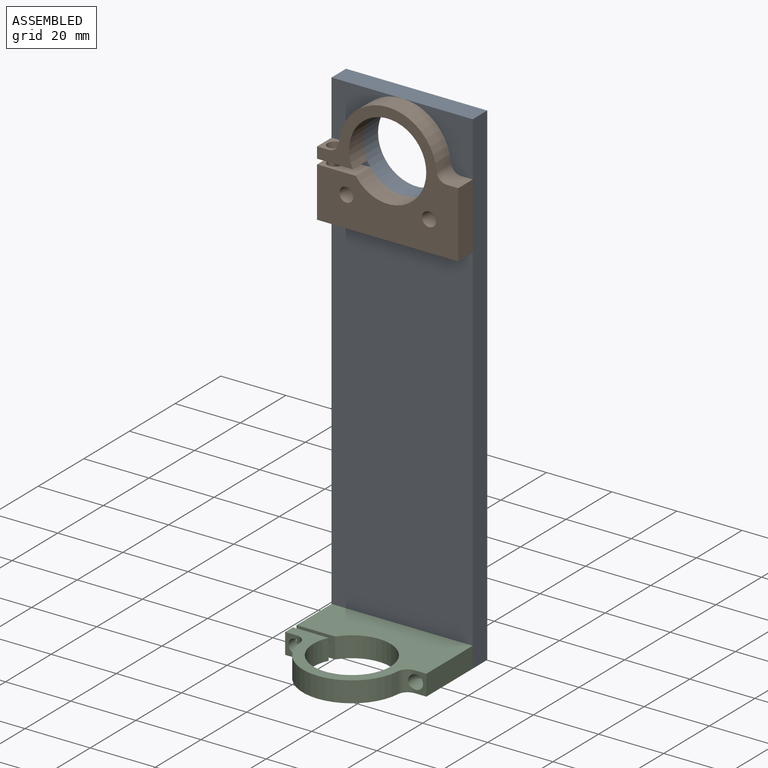
[diagram: assembled view]
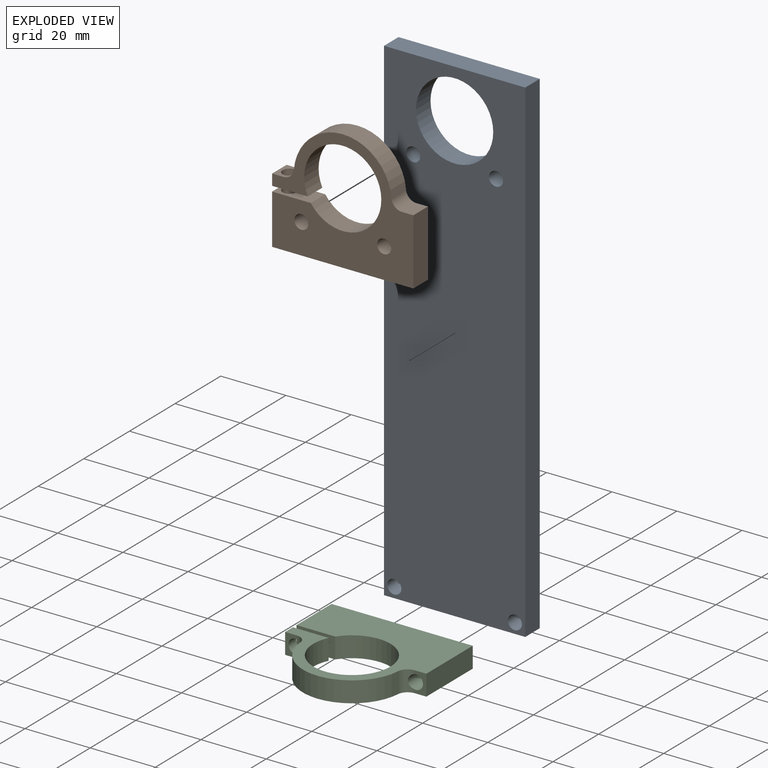
[diagram: exploded view]
GUIDED TOUR — MATED ASSEMBLY (Onshape document f667a65f83858eaefb3c8f8a, AutoMate assembly f667a65f83858eaefb3c8f8a_7182e9b4c6fdfac05016f8f3_ef4f67770267262d80a70ee8_default)

This assembly has 3 components, labeled P0..P2 below (a component is one placed occurrence of a part; the same part can appear more than once), held together by 2 mates. A mate is a constraint between two components; its type names the relative motion it leaves free:
  FASTENED — locks the two components together rigidly (no relative motion).
Axis/direction vectors are unit vectors and 'through' points are millimeter coordinates, both in the assembly's world frame.

MATES
  1. FASTENED "Fastened 2": P2 <-> P0, direction (0.000, 1.000, 0.000) through (11.60, -10.55, -73.36) mm
  2. FASTENED "Fastened 1": P1 <-> P0, direction (0.000, 1.000, 0.000) through (5.81, -10.55, 48.14) mm

ASSEMBLY ORDER
  1. P2 — the base component [order verified]
  2. P1 [order verified]
  3. P0 [order verified]
Order-tag legend:
  [order verified] — this step's position reverses a verified removal order: the component was checked to insert without passing through the ones already placed.

Of the 3 components, 3 carry the full construction recipe — the FeatureScript program that regenerates the part's solid from scratch; the rest are supplied as boundary geometry only.
Each toured component is shown spotlighted twice — in the assembled view, then in the exploded view, where a leader line traces a displaced component back to its assembled socket (saturated green if recipe-attached, orange if geometry-only; every other component desaturated gray) — followed by its recipe or geometry summary and the mates that hold it.
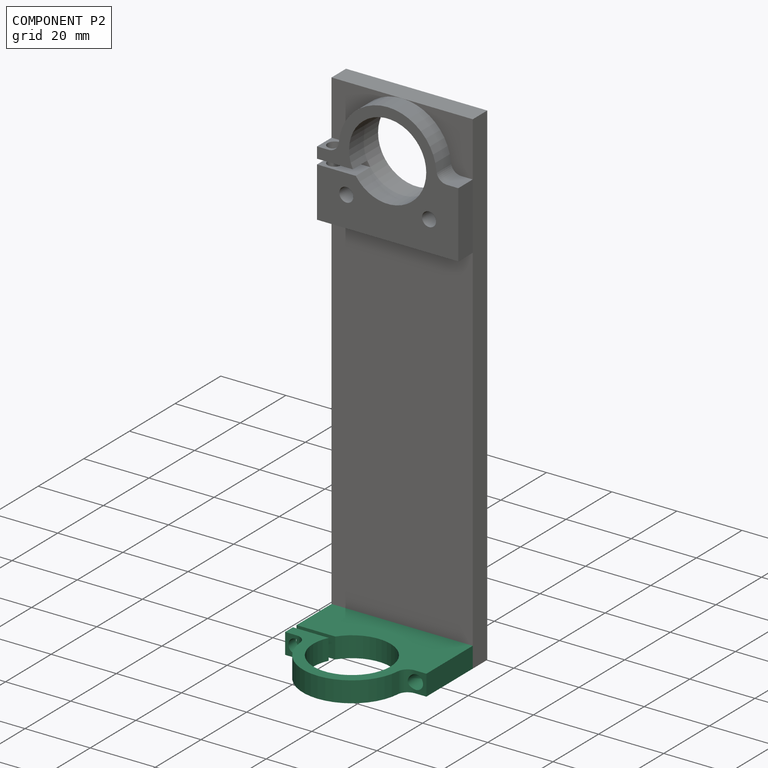
[diagram: component P2 — assembled]
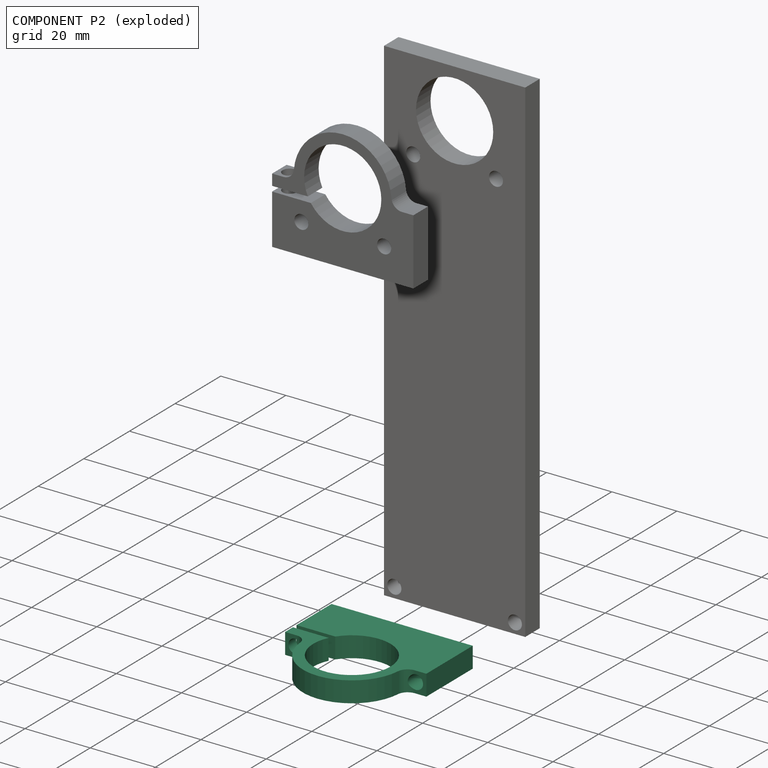
[diagram: component P2 — exploded]
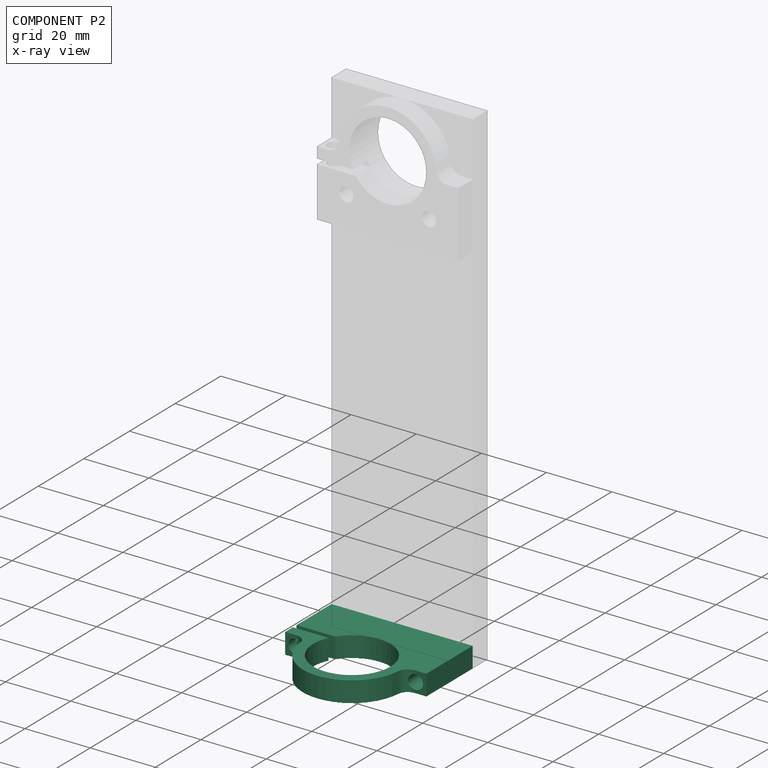
[diagram: component P2 — x-ray view]
COMPONENT P2 — recipe-attached (CADFS 00216292, mesh-verified: the recipe's output STEP matches this component's geometry to below the mesh-comparison resolution (tessellation chordal tolerance ~0.086 mm)).
Held by: FASTENED mate "Fastened 2" to P0.
Construction recipe (FeatureScript — the CAD program that rebuilds this solid; sketch coordinates are in the units given by the * unit suffixes, e.g. mm):

FeatureScript 1511;
import(path : "onshape/std/geometry.fs", version : "1511.0");
import(path : "onshape/std/common.fs", version : "1511.0");
const mm = millimeter;
const VERTEX = EntityType.VERTEX;
const EDGE = EntityType.EDGE;
const FACE = EntityType.FACE;
const BODY = EntityType.BODY;
function v(x, y){return vector(x, y);}
function OD(order){return orderDisambiguation(order);}
function OSD(set){return originalSetDisambiguation(set);}
function TD(topology){return topologyDisambiguation(topology);}
function TDD(query){return trueDependencyDisambiguation(query);}
function sQuery(a, b, c) {return sketchEntityQuery(a, b, c);}

annotation { "Feature Type Name" : "Feature", "Feature Type Description" : "" }
export const myFeature = defineFeature(function(context is Context, id is Id, definition is map)
    precondition{}
    {
        {
            var Q0;
            Q0=qCreatedBy(makeId("Front.planeOp"),FACE);
            var sketch = newSketch(context, id + "F0", { "sketchPlane" : qUnion([Q0])});
            skArc(sketch, "E0", {"start": v(-9.8, -6.67) * mm, "mid": v(10.28, 5.9) * mm, "end": v(-10.7, -5.09) * mm});
            skArc(sketch, "E1", {"start": v(14.97, 1.23) * mm, "mid": v(0, 15.02) * mm, "end": v(-14.97, 1.23) * mm});
            skLineSegment(sketch, "E2.bottom", {"start": v(-21.67, -1.68) * mm, "end": v(-18.14, -1.68) * mm});
            skLineSegment(sketch, "E2.top", {"start": v(-21.67, -22.02) * mm, "end": v(21.67, -22.02) * mm});
            skLineSegment(sketch, "E2.left", {"start": v(-21.67, -1.68) * mm, "end": v(-21.67, -5.09) * mm});
            skLineSegment(sketch, "E2.right", {"start": v(21.67, -1.68) * mm, "end": v(21.67, -22.02) * mm});
            skPoint(sketch, "E2.middle", {"position": v(0, -11.85) * mm});
            skLineSegment(sketch, "E3", {"start": v(-21.67, -5.09) * mm, "end": v(-10.7, -5.09) * mm});
            skLineSegment(sketch, "E4", {"start": v(-21.67, -6.67) * mm, "end": v(-9.8, -6.67) * mm});
            skLineSegment(sketch, "E5.trimOffspring", {"start": v(-21.67, -6.67) * mm, "end": v(-21.67, -22.02) * mm});
            skLineSegment(sketch, "E6.trimOffspring", {"start": v(18.14, -1.68) * mm, "end": v(21.67, -1.68) * mm});
            skPoint(sketch, "E7.visualSharp", {"position": v(-14.93, -1.68) * mm});
            skArc(sketch, "E7.filletArc", {"start": v(-18.14, -1.68) * mm, "mid": v(-15.99, -0.84) * mm, "end": v(-14.97, 1.23) * mm});
            skPoint(sketch, "E8.visualSharp", {"position": v(14.93, -1.68) * mm});
            skArc(sketch, "E8.filletArc", {"start": v(14.97, 1.23) * mm, "mid": v(15.99, -0.84) * mm, "end": v(18.14, -1.68) * mm});
            skSolve(sketch);
        }
        {
            var Q0;
            Q0 = qSketchRegion(id + "F0", true);
            extrude(context, id + "F1", {"entities" : qUnion([Q0]), "depth" : 6.35 * mm});
        }
        {
            var Q0;
            Q0=makeQuery(id+"F1.opExtrude","SWEPT_FACE",FACE,{"disambiguationData":[OSD([sQuery(id+"F0.wireOp",EDGE,"E2.bottom")])]});
            var sketch = newSketch(context, id + "F2", { "sketchPlane" : qUnion([Q0])});
            skLineSegment(sketch, "E9", {"start": v(-21.67, -3.18) * mm, "end": v(21.64, -3.18) * mm, "construction": true});
            skPoint(sketch, "E9.endSnap0", {"position": v(-21.67, -3.18) * mm});
            skCircle(sketch, "E10", {"center": v(-18.5, -3.18) * mm, "radius": 2.16 * mm});
            skCircle(sketch, "E11", {"center": v(18.5, -3.17) * mm, "radius": 2.16 * mm});
            skSolve(sketch);
        }
        {
            var Q0;
            Q0 = qSketchRegion(id + "F2", true);
            extrude(context, id + "F3", {"entities" : qUnion([Q0]), "operationType" : NewBodyOperationType.REMOVE, "endBound" : BoundingType.SYMMETRIC, "oppositeDirection" : true, "depth" : 76.2 * mm});
        }
    });
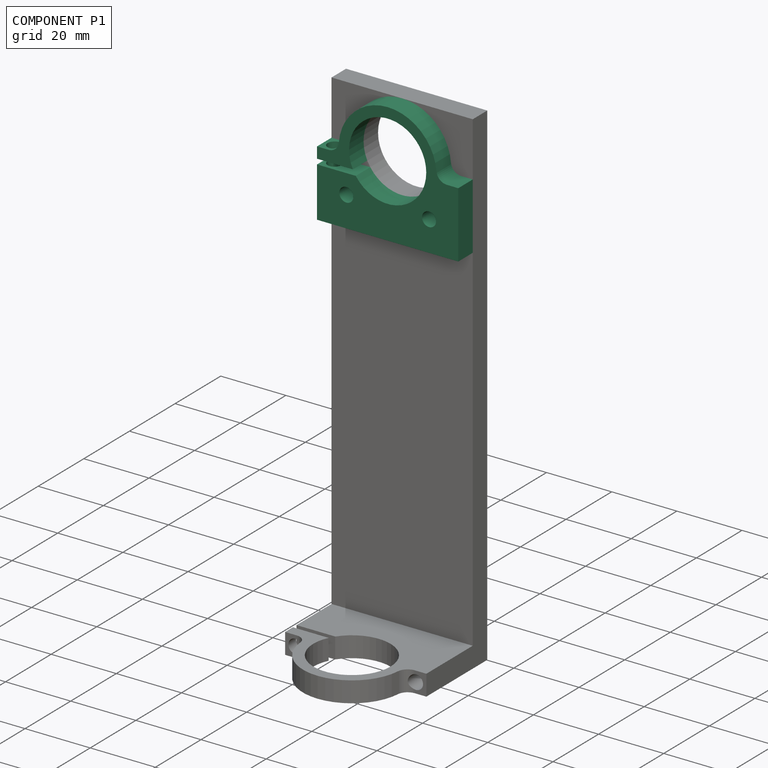
[diagram: component P1 — assembled]
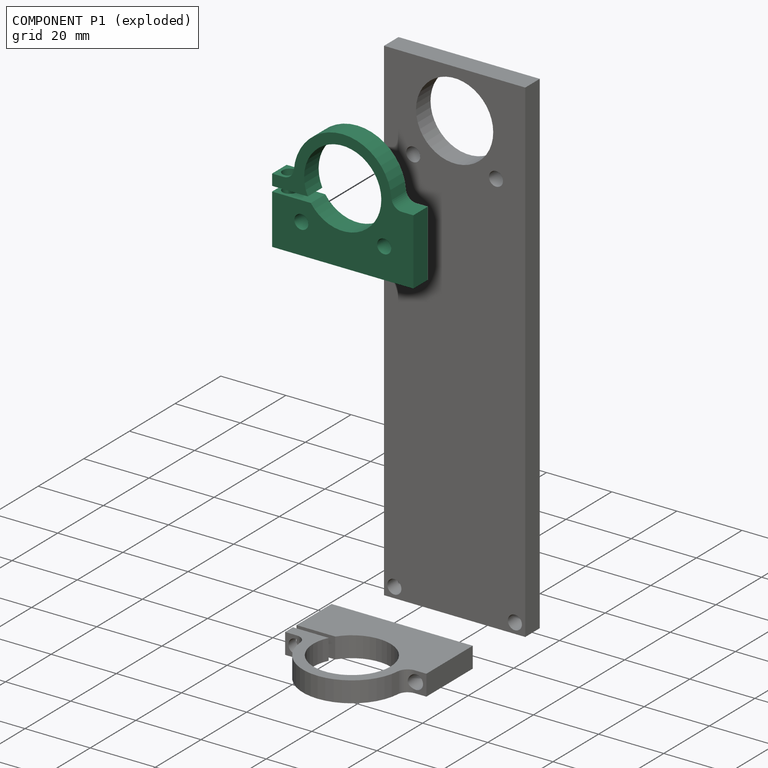
[diagram: component P1 — exploded]
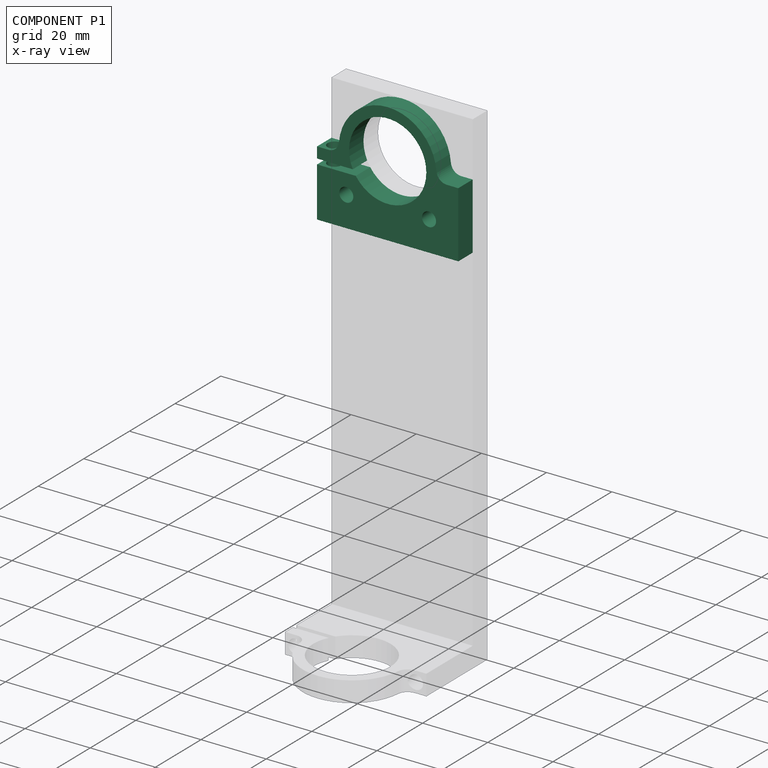
[diagram: component P1 — x-ray view]
COMPONENT P1 — recipe-attached (CADFS 00216293, mesh-verified: the recipe's output STEP matches this component's geometry to below the mesh-comparison resolution (tessellation chordal tolerance ~0.086 mm)).
Held by: FASTENED mate "Fastened 1" to P0.
Construction recipe (FeatureScript — the CAD program that rebuilds this solid; sketch coordinates are in the units given by the * unit suffixes, e.g. mm):

FeatureScript 1511;
import(path : "onshape/std/geometry.fs", version : "1511.0");
import(path : "onshape/std/common.fs", version : "1511.0");
const mm = millimeter;
const VERTEX = EntityType.VERTEX;
const EDGE = EntityType.EDGE;
const FACE = EntityType.FACE;
const BODY = EntityType.BODY;
function v(x, y){return vector(x, y);}
function OD(order){return orderDisambiguation(order);}
function OSD(set){return originalSetDisambiguation(set);}
function TD(topology){return topologyDisambiguation(topology);}
function TDD(query){return trueDependencyDisambiguation(query);}
function sQuery(a, b, c) {return sketchEntityQuery(a, b, c);}

annotation { "Feature Type Name" : "Feature", "Feature Type Description" : "" }
export const myFeature = defineFeature(function(context is Context, id is Id, definition is map)
    precondition{}
    {
        {
            var Q0;
            Q0=qCreatedBy(makeId("Front.planeOp"),FACE);
            var sketch = newSketch(context, id + "F0", { "sketchPlane" : qUnion([Q0])});
            skArc(sketch, "E0", {"start": v(-9.79, -6.68) * mm, "mid": v(10.28, 5.9) * mm, "end": v(-10.7, -5.09) * mm});
            skArc(sketch, "E1", {"start": v(14.97, 1.23) * mm, "mid": v(0, 15.02) * mm, "end": v(-14.97, 1.23) * mm});
            skLineSegment(sketch, "E2.bottom", {"start": v(-21.67, -1.68) * mm, "end": v(-18.14, -1.68) * mm});
            skLineSegment(sketch, "E2.top", {"start": v(-21.67, -22.02) * mm, "end": v(21.67, -22.02) * mm});
            skLineSegment(sketch, "E2.left", {"start": v(-21.67, -1.68) * mm, "end": v(-21.67, -5.09) * mm});
            skLineSegment(sketch, "E2.right", {"start": v(21.67, -1.68) * mm, "end": v(21.67, -22.02) * mm});
            skPoint(sketch, "E2.middle", {"position": v(0, -11.85) * mm});
            skLineSegment(sketch, "E3", {"start": v(-21.67, -5.09) * mm, "end": v(-10.7, -5.09) * mm});
            skLineSegment(sketch, "E4", {"start": v(-21.67, -6.68) * mm, "end": v(-9.79, -6.68) * mm});
            skLineSegment(sketch, "E5.trimOffspring", {"start": v(-21.67, -6.68) * mm, "end": v(-21.67, -22.02) * mm});
            skLineSegment(sketch, "E6.trimOffspring", {"start": v(18.14, -1.68) * mm, "end": v(21.67, -1.68) * mm});
            skPoint(sketch, "E7.visualSharp", {"position": v(-14.93, -1.68) * mm});
            skArc(sketch, "E7.filletArc", {"start": v(-18.14, -1.68) * mm, "mid": v(-15.99, -0.84) * mm, "end": v(-14.97, 1.23) * mm});
            skPoint(sketch, "E8.visualSharp", {"position": v(14.93, -1.68) * mm});
            skArc(sketch, "E8.filletArc", {"start": v(14.97, 1.23) * mm, "mid": v(15.99, -0.84) * mm, "end": v(18.14, -1.68) * mm});
            skLineSegment(sketch, "E9", {"start": v(-21.67, -12.7) * mm, "end": v(21.67, -12.7) * mm, "construction": true});
            skLineSegment(sketch, "E10", {"start": v(-12.7, -6.68) * mm, "end": v(-12.7, -22.02) * mm, "construction": true});
            skCircle(sketch, "E11", {"center": v(-12.7, -12.7) * mm, "radius": 2.16 * mm});
            skPoint(sketch, "E12", {"position": v(-12.7, -14.35) * mm});
            skCircle(sketch, "E13.MirrorC", {"center": v(12.7, -12.7) * mm, "radius": 2.16 * mm});
            skSolve(sketch);
        }
        {
            var Q0;
            Q0=qSketchRegion(id+"F0",true);
            extrude(context, id + "F1", {"entities" : qUnion([Q0]), "depth" : 6.35 * mm});
        }
        {
            var Q0;
            Q0=makeQuery(id+"F1.opExtrude","SWEPT_FACE",FACE,{"disambiguationData":[OSD([sQuery(id+"F0.wireOp",EDGE,"E2.bottom")])]});
            var sketch = newSketch(context, id + "F2", { "sketchPlane" : qUnion([Q0])});
            skLineSegment(sketch, "E14", {"start": v(-21.67, -3.18) * mm, "end": v(21.64, -3.18) * mm, "construction": true});
            skPoint(sketch, "E14.endSnap0", {"position": v(-21.67, -3.18) * mm});
            skCircle(sketch, "E15", {"center": v(-18.5, -3.18) * mm, "radius": 2.16 * mm});
            skSolve(sketch);
        }
        {
            var Q0;
            Q0=qSketchRegion(id+"F2",true);
            extrude(context, id + "F3", {"entities" : qUnion([Q0]), "operationType" : NewBodyOperationType.REMOVE, "endBound" : BoundingType.SYMMETRIC, "oppositeDirection" : true, "depth" : 76.2 * mm});
        }
    });
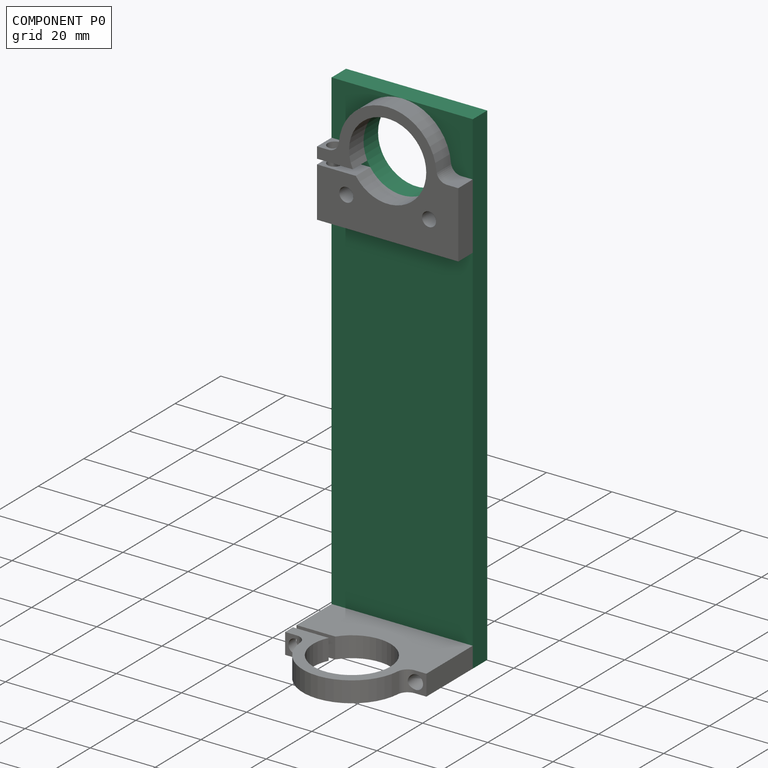
[diagram: component P0 — assembled]
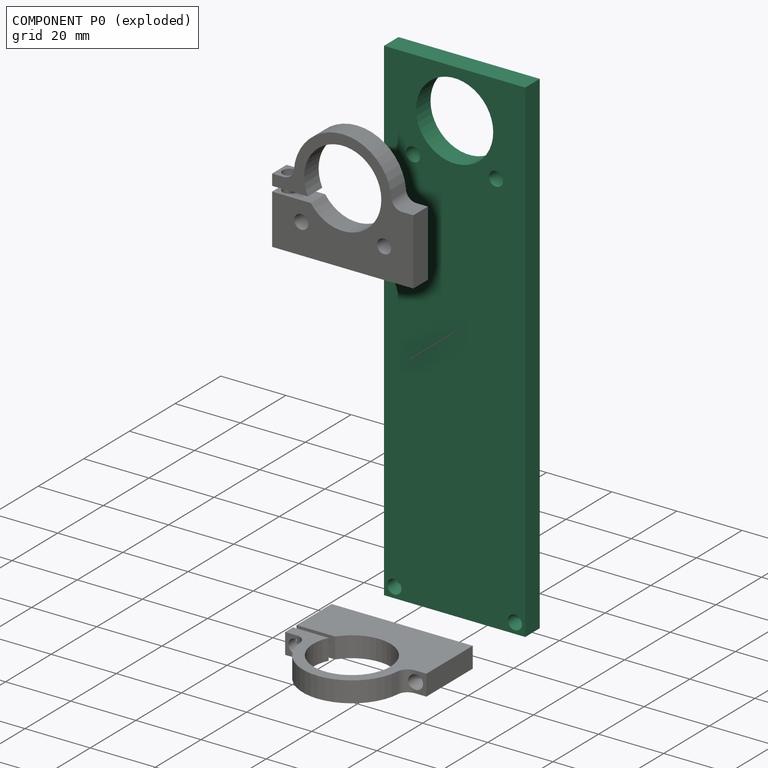
[diagram: component P0 — exploded]
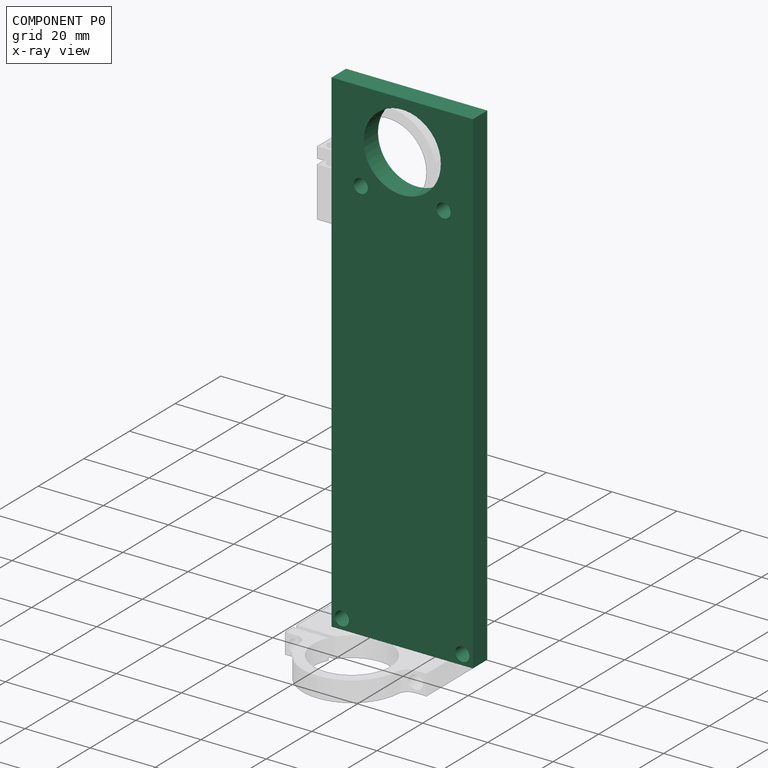
[diagram: component P0 — x-ray view]
COMPONENT P0 — recipe-attached (CADFS 00216294, mesh-verified: the recipe's output STEP matches this component's geometry to below the mesh-comparison resolution (tessellation chordal tolerance ~0.238 mm)).
Held by: FASTENED mate "Fastened 2" to P2; FASTENED mate "Fastened 1" to P1.
Construction recipe (FeatureScript — the CAD program that rebuilds this solid; sketch coordinates are in the units given by the * unit suffixes, e.g. mm):

FeatureScript 1511;
import(path : "onshape/std/geometry.fs", version : "1511.0");
import(path : "onshape/std/common.fs", version : "1511.0");
const mm = millimeter;
const VERTEX = EntityType.VERTEX;
const EDGE = EntityType.EDGE;
const FACE = EntityType.FACE;
const BODY = EntityType.BODY;
function v(x, y){return vector(x, y);}
function OD(order){return orderDisambiguation(order);}
function OSD(set){return originalSetDisambiguation(set);}
function TD(topology){return topologyDisambiguation(topology);}
function TDD(query){return trueDependencyDisambiguation(query);}
function sQuery(a, b, c) {return sketchEntityQuery(a, b, c);}

annotation { "Feature Type Name" : "Feature", "Feature Type Description" : "" }
export const myFeature = defineFeature(function(context is Context, id is Id, definition is map)
    precondition{}
    {
        {
            var Q0;
            Q0=qCreatedBy(makeId("Front.planeOp"),FACE);
            var sketch = newSketch(context, id + "F0", { "sketchPlane" : qUnion([Q0])});
            skLineSegment(sketch, "E0.bottom", {"start": v(21.67, -76.2) * mm, "end": v(-21.67, -76.2) * mm});
            skLineSegment(sketch, "E0.top", {"start": v(21.67, 76.2) * mm, "end": v(-21.67, 76.2) * mm});
            skLineSegment(sketch, "E0.left", {"start": v(21.67, -76.2) * mm, "end": v(21.67, 76.2) * mm});
            skLineSegment(sketch, "E0.right", {"start": v(-21.67, -76.2) * mm, "end": v(-21.67, 76.2) * mm});
            skPoint(sketch, "E0.middle", {"position": v(0, 0) * mm});
            skCircle(sketch, "E1", {"center": v(18.5, -73.03) * mm, "radius": 2.16 * mm});
            skCircle(sketch, "E2.MirrorC", {"center": v(-18.5, -73.03) * mm, "radius": 2.16 * mm});
            skCircle(sketch, "E3", {"center": v(0, 61.18) * mm, "radius": 11.85 * mm});
            skCircle(sketch, "E4", {"center": v(-12.7, 48.48) * mm, "radius": 2.16 * mm});
            skCircle(sketch, "E5.MirrorC", {"center": v(12.7, 48.48) * mm, "radius": 2.16 * mm});
            skSolve(sketch);
        }
        {
            var Q0;
            Q0 = qSketchRegion(id + "F0", true);
            extrude(context, id + "F1", {"entities" : qUnion([Q0]), "depth" : 6.35 * mm});
        }
    });
PROVENANCE & LICENSES
Assembly (occurrences, transforms, mates, per-part STEP geometry): AutoMate dataset, Zenodo record 7776208, CC0.
Construction recipes: CADFS (HuggingFace VladPyatov/CADFS, CC-BY-4.0, layered over the ABC dataset), FeatureScript reconstruction programs keyed by ABC model id.
Join: ABC meta listings map ABC model id -> Onshape documentId; within a shared document, parts are matched by geometric signature (bounding-box dims + volume at 0.1% relative tolerance, exact B-rep face/solid counts).
Verification: 3 of this assembly's 3 components carry a recipe attachment, and every attachment is mesh-verified: the CADFS STEP and the AutoMate member STEP were compared as meshes in their shared local frame (symmetric sampled-point-to-mesh distance); worst across the 3 attachments: below the mesh-comparison resolution (tessellation chordal tolerance ~0.238 mm) on a 159 mm part.
Renders: orthographic iso camera (az 35 / el 25); the floor grid conveys scale (grid pitch printed in each image; no ruler). In the exploded view each component is displaced by its stored offset vector: the offsets alone carry the explosion direction (mate normal/axis signs are not orientation cues and do not encode it), and separation distances are assigned per mate-chain, not proportionally to assembly-order depth.
